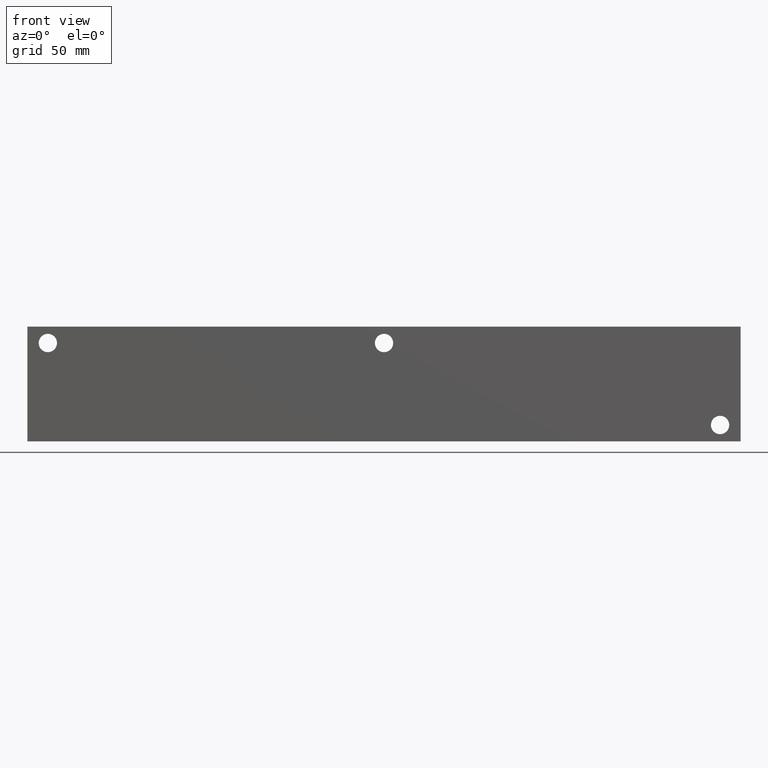
[diagram: clean part render]
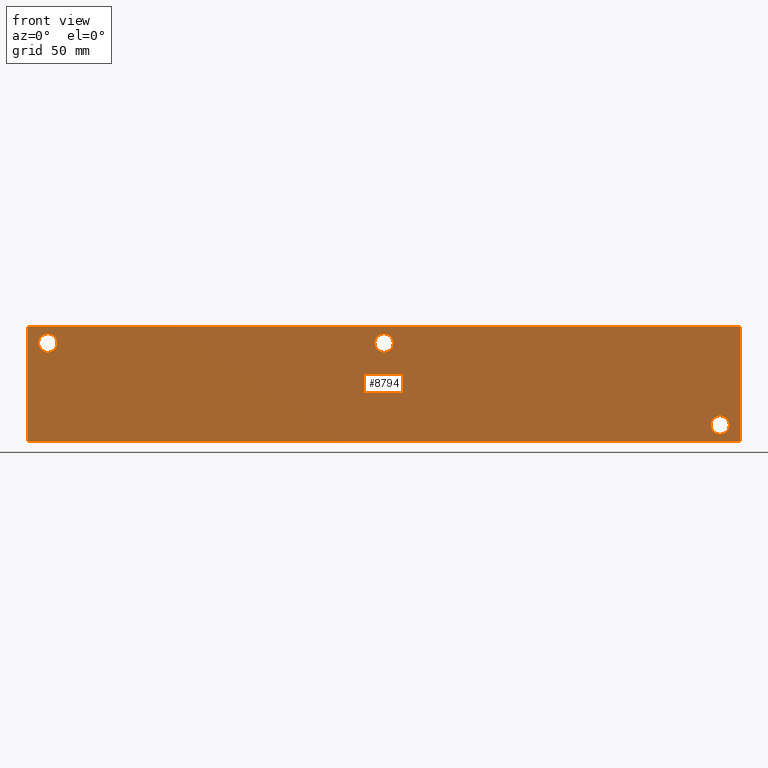
[diagram: same view with one face highlighted and labeled with its STEP entity id]
A machine part, front view. The second image highlights one B-rep face of the part: STEP entity #8794.
In plain terms, the highlighted planar face has unit normal (0, -1, 0).
Its self-contained STEP definition (entity closure, byte-faithful):
#163=CIRCLE('',#9039,3.5687);
#164=CIRCLE('',#9040,3.5687);
#166=CIRCLE('',#9048,3.5687);
#167=CIRCLE('',#9049,3.5687);
#169=CIRCLE('',#9057,3.5687);
#170=CIRCLE('',#9058,3.5687);
#438=FACE_BOUND('',#1676,.T.);
#439=FACE_BOUND('',#1677,.T.);
#440=FACE_BOUND('',#1678,.T.);
#686=PLANE('',#9406);
#1148=FACE_OUTER_BOUND('',#1675,.T.);
#1675=EDGE_LOOP('',(#7895,#7896,#7897,#7898));
#1676=EDGE_LOOP('',(#7899,#7900));
#1677=EDGE_LOOP('',(#7901,#7902));
#1678=EDGE_LOOP('',(#7903,#7904));
#1957=LINE('',#13562,#2732);
#2458=LINE('',#15216,#3233);
#2463=LINE('',#15225,#3238);
#2464=LINE('',#15227,#3239);
#2732=VECTOR('',#9814,10.);
#3233=VECTOR('',#11365,10.);
#3238=VECTOR('',#11374,10.);
#3239=VECTOR('',#11377,10.);
#3754=VERTEX_POINT('',#13560);
#3755=VERTEX_POINT('',#13561);
#4038=VERTEX_POINT('',#14513);
#4039=VERTEX_POINT('',#14514);
#4043=VERTEX_POINT('',#14529);
#4044=VERTEX_POINT('',#14530);
#4048=VERTEX_POINT('',#14545);
#4049=VERTEX_POINT('',#14546);
#4255=VERTEX_POINT('',#15214);
#4257=VERTEX_POINT('',#15223);
#4717=EDGE_CURVE('',#3754,#3755,#1957,.T.);
#5132=EDGE_CURVE('',#4038,#4039,#163,.T.);
#5133=EDGE_CURVE('',#4039,#4038,#164,.T.);
#5141=EDGE_CURVE('',#4043,#4044,#166,.T.);
#5142=EDGE_CURVE('',#4044,#4043,#167,.T.);
#5150=EDGE_CURVE('',#4048,#4049,#169,.T.);
#5151=EDGE_CURVE('',#4049,#4048,#170,.T.);
#5474=EDGE_CURVE('',#4255,#3754,#2458,.T.);
#5479=EDGE_CURVE('',#4257,#3755,#2463,.T.);
#5480=EDGE_CURVE('',#4255,#4257,#2464,.T.);
#7895=ORIENTED_EDGE('',*,*,#5480,.T.);
#7896=ORIENTED_EDGE('',*,*,#5479,.T.);
#7897=ORIENTED_EDGE('',*,*,#4717,.F.);
#7898=ORIENTED_EDGE('',*,*,#5474,.F.);
#7899=ORIENTED_EDGE('',*,*,#5132,.T.);
#7900=ORIENTED_EDGE('',*,*,#5133,.T.);
#7901=ORIENTED_EDGE('',*,*,#5141,.T.);
#7902=ORIENTED_EDGE('',*,*,#5142,.T.);
#7903=ORIENTED_EDGE('',*,*,#5150,.T.);
#7904=ORIENTED_EDGE('',*,*,#5151,.T.);
#8794=ADVANCED_FACE('',(#1148,#438,#439,#440),#686,.T.);
#9039=AXIS2_PLACEMENT_3D('',#14515,#10515,#10516);
#9040=AXIS2_PLACEMENT_3D('',#14516,#10517,#10518);
#9048=AXIS2_PLACEMENT_3D('',#14531,#10535,#10536);
#9049=AXIS2_PLACEMENT_3D('',#14532,#10537,#10538);
#9057=AXIS2_PLACEMENT_3D('',#14547,#10555,#10556);
#9058=AXIS2_PLACEMENT_3D('',#14548,#10557,#10558);
#9406=AXIS2_PLACEMENT_3D('',#15226,#11375,#11376);
#9814=DIRECTION('',(1.,0.,0.));
#10515=DIRECTION('center_axis',(0.,1.,0.));
#10516=DIRECTION('ref_axis',(1.,0.,0.));
#10517=DIRECTION('center_axis',(0.,1.,0.));
#10518=DIRECTION('ref_axis',(1.,0.,0.));
#10535=DIRECTION('center_axis',(0.,1.,0.));
#10536=DIRECTION('ref_axis',(1.,0.,0.));
#10537=DIRECTION('center_axis',(0.,1.,0.));
#10538=DIRECTION('ref_axis',(1.,0.,0.));
#10555=DIRECTION('center_axis',(0.,1.,0.));
#10556=DIRECTION('ref_axis',(1.,0.,0.));
#10557=DIRECTION('center_axis',(0.,1.,0.));
#10558=DIRECTION('ref_axis',(1.,0.,0.));
#11365=DIRECTION('',(0.,0.,1.));
#11374=DIRECTION('',(0.,0.,1.));
#11375=DIRECTION('center_axis',(0.,-1.,0.));
#11376=DIRECTION('ref_axis',(1.,0.,0.));
#11377=DIRECTION('',(1.,0.,0.));
#13560=CARTESIAN_POINT('',(0.,0.,44.45));
#13561=CARTESIAN_POINT('',(276.225,0.,44.45));
#13562=CARTESIAN_POINT('',(0.,0.,44.45));
#14513=CARTESIAN_POINT('',(141.6939,0.,38.1));
#14514=CARTESIAN_POINT('',(134.5565,0.,38.1));
#14515=CARTESIAN_POINT('Origin',(138.1252,0.,38.1));
#14516=CARTESIAN_POINT('Origin',(138.1252,0.,38.1));
#14529=CARTESIAN_POINT('',(11.4935,0.,38.1));
#14530=CARTESIAN_POINT('',(4.3561,0.,38.1));
#14531=CARTESIAN_POINT('Origin',(7.9248,0.,38.1));
#14532=CARTESIAN_POINT('Origin',(7.9248,0.,38.1));
#14545=CARTESIAN_POINT('',(271.8435,0.,6.35));
#14546=CARTESIAN_POINT('',(264.7061,0.,6.35));
#14547=CARTESIAN_POINT('Origin',(268.2748,0.,6.35));
#14548=CARTESIAN_POINT('Origin',(268.2748,0.,6.35));
#15214=CARTESIAN_POINT('',(0.,0.,0.));
#15216=CARTESIAN_POINT('',(0.,0.,0.));
#15223=CARTESIAN_POINT('',(276.225,0.,0.));
#15225=CARTESIAN_POINT('',(276.225,0.,0.));
#15226=CARTESIAN_POINT('Origin',(0.,0.,0.));
#15227=CARTESIAN_POINT('',(0.,0.,0.));